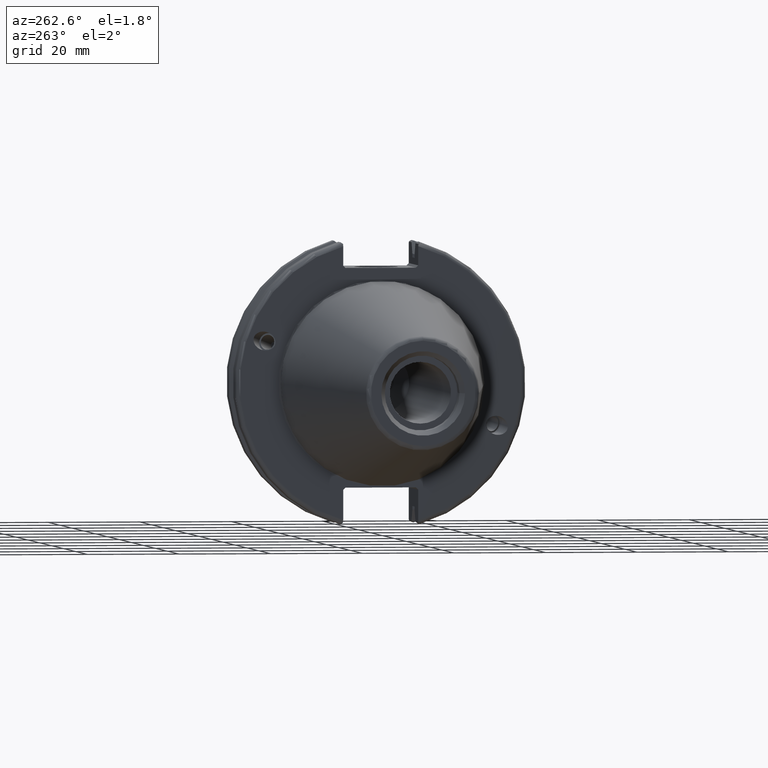
[diagram: clean part render]
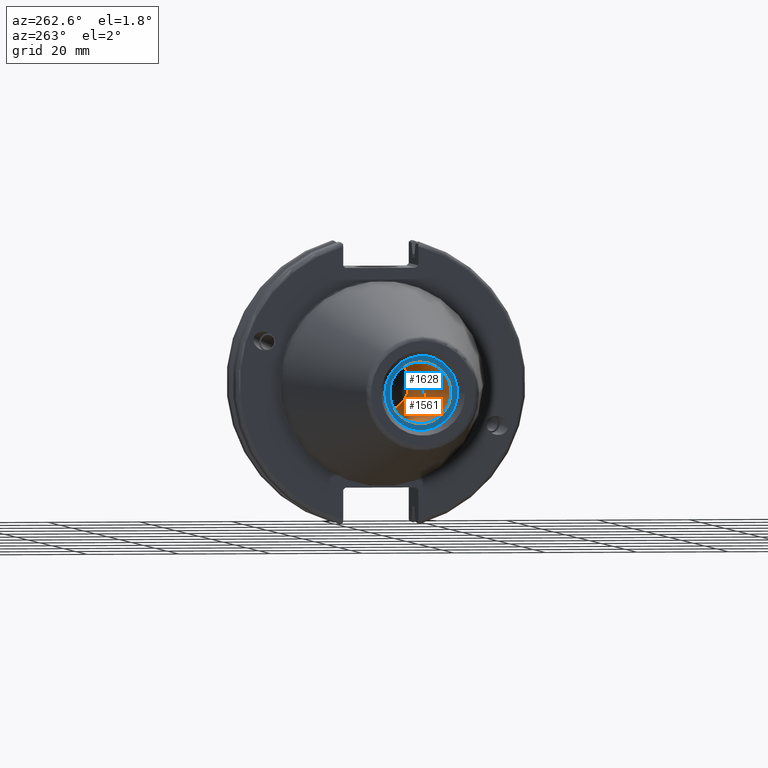
[diagram: same view with the hole feature highlighted: cylindrical wall and planar end face, labeled with their STEP entity ids]
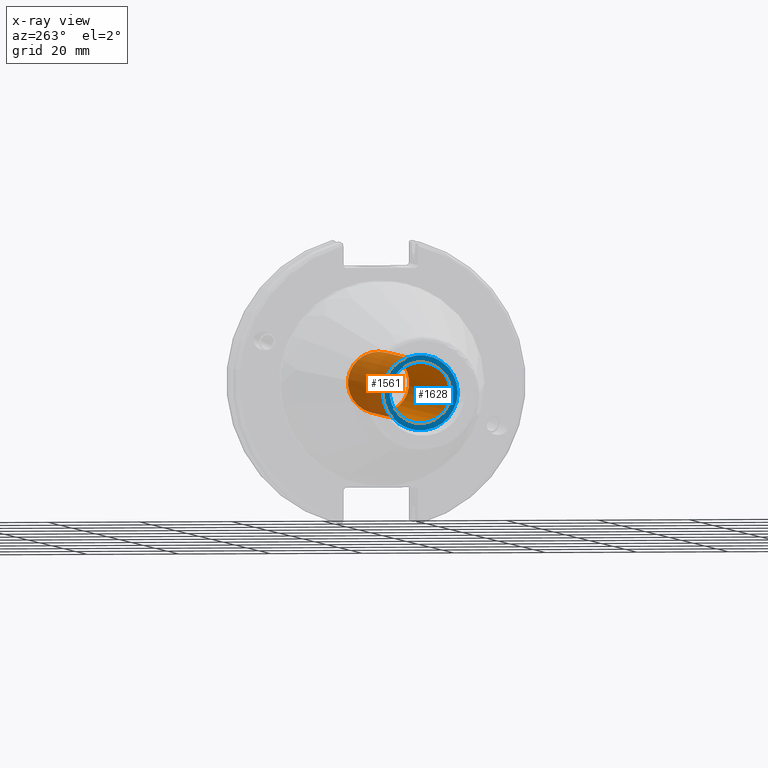
[diagram: x-ray of the same camera — body ghosted, the hole faces saturated]
A machine part, auxiliary view. The highlighted faces form one hole feature of diameter 13.3858 mm: the cylindrical wall (entity #1561, orange) and its adjacent planar end face (entity #1628, blue) — they share a circular edge in the B-rep.
The next image is the same camera in x-ray (body ghosted, the hole faces saturated) — the bore reads through the body.
Wall:
#120=LINE('',#2582,#214);
#214=VECTOR('',#1953,6.6929);
#294=CYLINDRICAL_SURFACE('',#1700,6.6929);
#385=FACE_OUTER_BOUND('',#480,.T.);
#480=EDGE_LOOP('',(#1142,#1143,#1144,#1145));
#589=CIRCLE('',#1699,6.6929);
#590=CIRCLE('',#1701,6.6929);
#683=VERTEX_POINT('',#2576);
#684=VERTEX_POINT('',#2580);
#857=EDGE_CURVE('',#683,#683,#589,.T.);
#859=EDGE_CURVE('',#684,#684,#590,.T.);
#860=EDGE_CURVE('',#684,#683,#120,.T.);
#1142=ORIENTED_EDGE('',*,*,#859,.F.);
#1143=ORIENTED_EDGE('',*,*,#860,.T.);
#1144=ORIENTED_EDGE('',*,*,#857,.F.);
#1145=ORIENTED_EDGE('',*,*,#860,.F.);
#1561=ADVANCED_FACE('',(#385),#294,.F.);
#1699=AXIS2_PLACEMENT_3D('',#2577,#1946,#1947);
#1700=AXIS2_PLACEMENT_3D('',#2579,#1949,#1950);
#1701=AXIS2_PLACEMENT_3D('',#2581,#1951,#1952);
#1946=DIRECTION('center_axis',(-1.,0.,0.));
#1947=DIRECTION('ref_axis',(0.,0.,1.));
#1949=DIRECTION('center_axis',(-1.,0.,0.));
#1950=DIRECTION('ref_axis',(0.,0.,1.));
#1951=DIRECTION('center_axis',(1.,0.,0.));
#1952=DIRECTION('ref_axis',(0.,0.,1.));
#1953=DIRECTION('',(1.,0.,0.));
#2576=CARTESIAN_POINT('',(6.74999999999999,-8.19643856201332E-16,-6.6929));
#2577=CARTESIAN_POINT('Origin',(6.74999999999999,0.,0.));
#2579=CARTESIAN_POINT('Origin',(-30.75,0.,0.));
#2580=CARTESIAN_POINT('',(-63.45,8.19643856201332E-16,-6.6929));
#2581=CARTESIAN_POINT('Origin',(-63.45,0.,0.));
#2582=CARTESIAN_POINT('',(-30.75,-8.19643856201332E-16,-6.6929));
End face:
#333=FACE_BOUND('',#557,.T.);
#367=PLANE('',#1834);
#452=FACE_OUTER_BOUND('',#556,.T.);
#556=EDGE_LOOP('',(#1509));
#557=EDGE_LOOP('',(#1510));
#590=CIRCLE('',#1701,6.6929);
#639=CIRCLE('',#1835,8.14999999999999);
#684=VERTEX_POINT('',#2580);
#801=VERTEX_POINT('',#3182);
#859=EDGE_CURVE('',#684,#684,#590,.T.);
#1041=EDGE_CURVE('',#801,#801,#639,.T.);
#1509=ORIENTED_EDGE('',*,*,#1041,.F.);
#1510=ORIENTED_EDGE('',*,*,#859,.T.);
#1628=ADVANCED_FACE('',(#452,#333),#367,.T.);
#1701=AXIS2_PLACEMENT_3D('',#2581,#1951,#1952);
#1834=AXIS2_PLACEMENT_3D('',#3181,#2290,#2291);
#1835=AXIS2_PLACEMENT_3D('',#3183,#2292,#2293);
#1951=DIRECTION('center_axis',(1.,0.,0.));
#1952=DIRECTION('ref_axis',(0.,0.,1.));
#2290=DIRECTION('center_axis',(-1.,0.,0.));
#2291=DIRECTION('ref_axis',(0.,0.,1.));
#2292=DIRECTION('center_axis',(1.,0.,0.));
#2293=DIRECTION('ref_axis',(0.,0.,-1.));
#2580=CARTESIAN_POINT('',(-63.45,8.19643856201332E-16,-6.6929));
#2581=CARTESIAN_POINT('Origin',(-63.45,0.,0.));
#3181=CARTESIAN_POINT('Origin',(-63.45,8.14999999999999,0.));
#3182=CARTESIAN_POINT('',(-63.45,-8.14999999999999,-9.98087141305092E-16));
#3183=CARTESIAN_POINT('Origin',(-63.45,0.,0.));